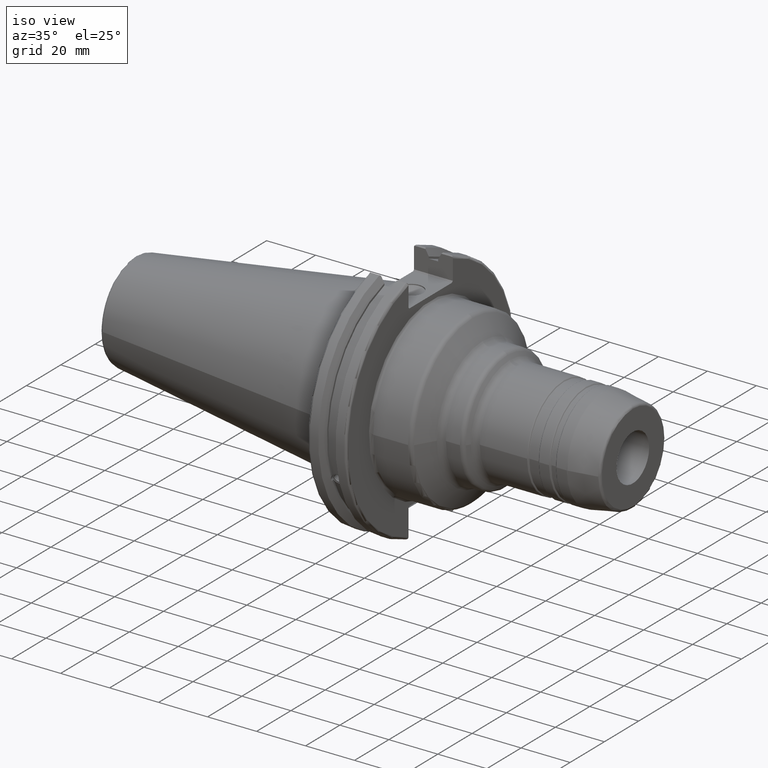
[diagram: clean part render]
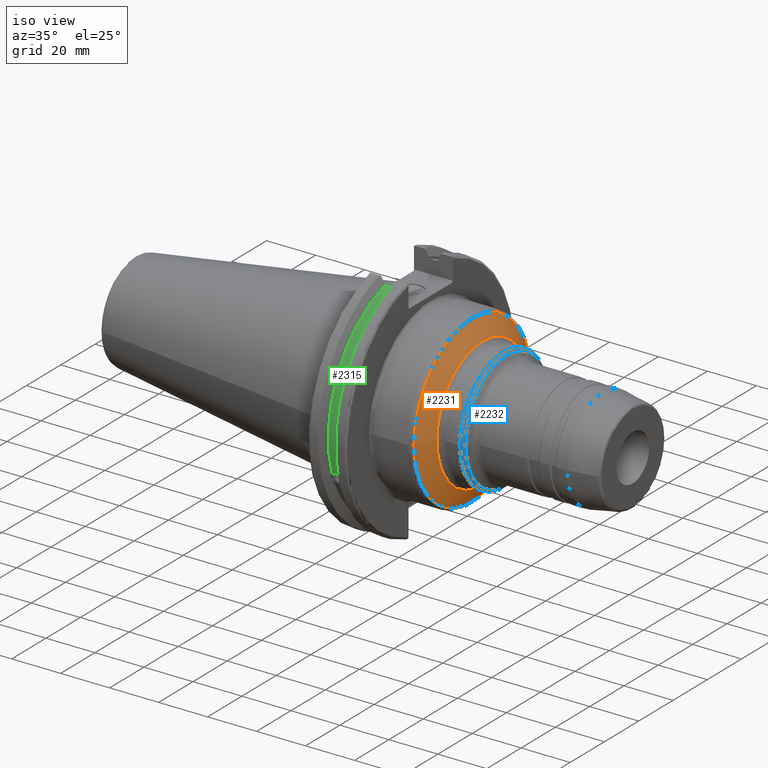
[diagram: same view with three faces highlighted in distinct colors, each labeled with its STEP entity id]
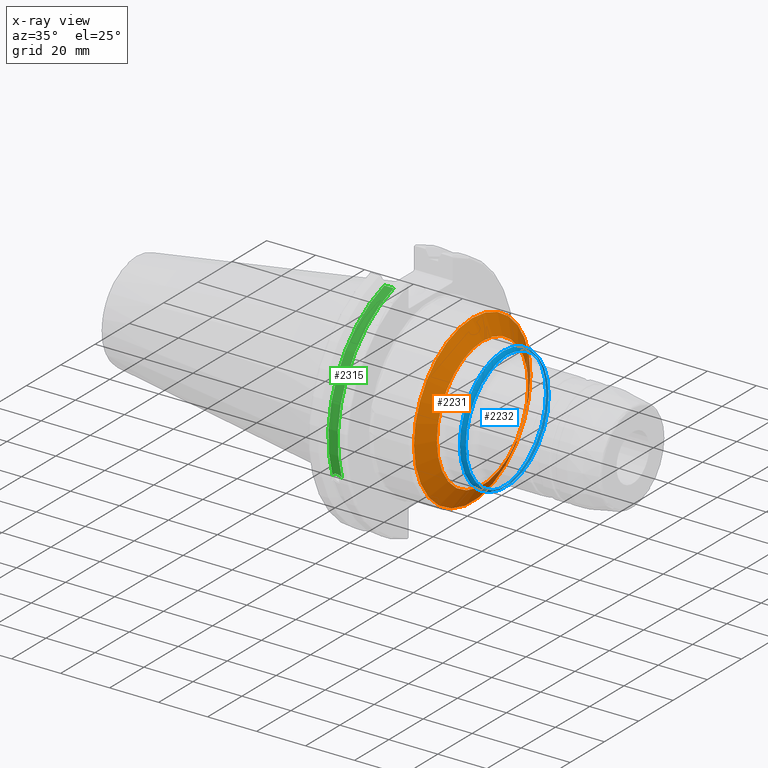
[diagram: x-ray of the same camera — body ghosted, the three highlighted faces saturated]
A machine part, iso view with three faces highlighted in distinct colors.
The next image is the same camera in x-ray (body ghosted, the three faces saturated) — at least one of them is partly hidden behind the body in this view.
Their STEP definitions:

[orange] entity #2231 — the highlighted conical surface has half-angle 60 deg.
#157=CONICAL_SURFACE('',#2452,30.0375,1.0471975511966);
#196=FACE_OUTER_BOUND('',#310,.T.);
#310=EDGE_LOOP('',(#1646,#1647,#1648,#1649,#1650,#1651,#1652,#1653));
#429=LINE('',#3668,#536);
#536=VECTOR('',#2898,30.0375);
#706=CIRCLE('',#2441,26.625);
#711=CIRCLE('',#2446,26.625);
#712=CIRCLE('',#2447,26.625);
#716=CIRCLE('',#2453,33.95);
#717=CIRCLE('',#2454,33.95);
#718=CIRCLE('',#2455,33.95);
#898=VERTEX_POINT('',#3645);
#899=VERTEX_POINT('',#3646);
#903=VERTEX_POINT('',#3655);
#907=VERTEX_POINT('',#3667);
#908=VERTEX_POINT('',#3669);
#909=VERTEX_POINT('',#3671);
#1183=EDGE_CURVE('',#898,#899,#706,.T.);
#1188=EDGE_CURVE('',#899,#903,#711,.T.);
#1189=EDGE_CURVE('',#903,#898,#712,.T.);
#1194=EDGE_CURVE('',#903,#907,#429,.T.);
#1195=EDGE_CURVE('',#908,#907,#716,.T.);
#1196=EDGE_CURVE('',#909,#908,#717,.T.);
#1197=EDGE_CURVE('',#907,#909,#718,.T.);
#1646=ORIENTED_EDGE('',*,*,#1183,.F.);
#1647=ORIENTED_EDGE('',*,*,#1189,.F.);
#1648=ORIENTED_EDGE('',*,*,#1194,.T.);
#1649=ORIENTED_EDGE('',*,*,#1195,.F.);
#1650=ORIENTED_EDGE('',*,*,#1196,.F.);
#1651=ORIENTED_EDGE('',*,*,#1197,.F.);
#1652=ORIENTED_EDGE('',*,*,#1194,.F.);
#1653=ORIENTED_EDGE('',*,*,#1188,.F.);
#2231=ADVANCED_FACE('',(#196),#157,.T.);
#2441=AXIS2_PLACEMENT_3D('',#3647,#2873,#2874);
#2446=AXIS2_PLACEMENT_3D('',#3656,#2883,#2884);
#2447=AXIS2_PLACEMENT_3D('',#3657,#2885,#2886);
#2452=AXIS2_PLACEMENT_3D('',#3666,#2896,#2897);
#2453=AXIS2_PLACEMENT_3D('',#3670,#2899,#2900);
#2454=AXIS2_PLACEMENT_3D('',#3672,#2901,#2902);
#2455=AXIS2_PLACEMENT_3D('',#3673,#2903,#2904);
#2873=DIRECTION('center_axis',(1.,0.,0.));
#2874=DIRECTION('ref_axis',(0.,-1.,3.06161699786838E-17));
#2883=DIRECTION('center_axis',(1.,0.,0.));
#2884=DIRECTION('ref_axis',(0.,-1.,3.06161699786838E-17));
#2885=DIRECTION('center_axis',(1.,0.,0.));
#2886=DIRECTION('ref_axis',(0.,-1.,3.06161699786838E-17));
#2896=DIRECTION('center_axis',(-1.,0.,0.));
#2897=DIRECTION('ref_axis',(0.,1.,0.));
#2898=DIRECTION('',(-0.5,-0.866025403784438,-1.06057523872491E-16));
#2899=DIRECTION('center_axis',(-1.,0.,0.));
#2900=DIRECTION('ref_axis',(0.,-1.,3.06161699786838E-17));
#2901=DIRECTION('center_axis',(-1.,0.,0.));
#2902=DIRECTION('ref_axis',(0.,-1.,3.06161699786838E-17));
#2903=DIRECTION('center_axis',(-1.,0.,0.));
#2904=DIRECTION('ref_axis',(0.,-1.,3.06161699786838E-17));
#3645=CARTESIAN_POINT('',(40.2339745962156,26.625,-1.63031105136491E-15));
#3646=CARTESIAN_POINT('',(40.2339745962156,-3.26062210272983E-15,26.625));
#3647=CARTESIAN_POINT('Origin',(40.2339745962156,0.,-4.07577762841228E-15));
#3655=CARTESIAN_POINT('',(40.2339745962156,-26.625,-3.26062210272982E-15));
#3656=CARTESIAN_POINT('Origin',(40.2339745962156,0.,-4.07577762841228E-15));
#3657=CARTESIAN_POINT('Origin',(40.2339745962156,0.,-4.07577762841228E-15));
#3666=CARTESIAN_POINT('Origin',(38.263766802606,0.,0.));
#3667=CARTESIAN_POINT('',(36.0048838744015,-33.95,-4.15767588310526E-15));
#3668=CARTESIAN_POINT('',(38.263766802606,-30.0375,-3.67853282293886E-15));
#3669=CARTESIAN_POINT('',(36.0048838744015,33.95,-1.03941897077632E-14));
#3670=CARTESIAN_POINT('Origin',(36.0048838744015,0.,-5.19709485388158E-15));
#3671=CARTESIAN_POINT('',(36.0048838744015,-4.15767588310526E-15,33.95));
#3672=CARTESIAN_POINT('Origin',(36.0048838744015,0.,-5.19709485388158E-15));
#3673=CARTESIAN_POINT('Origin',(36.0048838744015,0.,-5.19709485388158E-15));

[blue] entity #2232 — the highlighted toroidal blend (fillet) surface has major radius 23.125 mm and minor (blend) radius 2 mm.
#80=TOROIDAL_SURFACE('',#2456,23.125,2.);
#197=FACE_OUTER_BOUND('',#311,.T.);
#311=EDGE_LOOP('',(#1654,#1655,#1656,#1657,#1658,#1659,#1660,#1661));
#703=CIRCLE('',#2437,24.125);
#704=CIRCLE('',#2438,24.125);
#705=CIRCLE('',#2439,24.125);
#713=CIRCLE('',#2449,25.125);
#714=CIRCLE('',#2450,25.125);
#715=CIRCLE('',#2451,25.125);
#719=CIRCLE('',#2457,2.);
#895=VERTEX_POINT('',#3637);
#896=VERTEX_POINT('',#3639);
#897=VERTEX_POINT('',#3641);
#904=VERTEX_POINT('',#3659);
#905=VERTEX_POINT('',#3660);
#906=VERTEX_POINT('',#3662);
#1180=EDGE_CURVE('',#896,#895,#703,.T.);
#1181=EDGE_CURVE('',#897,#896,#704,.T.);
#1182=EDGE_CURVE('',#895,#897,#705,.T.);
#1190=EDGE_CURVE('',#904,#905,#713,.T.);
#1191=EDGE_CURVE('',#906,#904,#714,.T.);
#1193=EDGE_CURVE('',#905,#906,#715,.T.);
#1198=EDGE_CURVE('',#897,#905,#719,.T.);
#1654=ORIENTED_EDGE('',*,*,#1180,.T.);
#1655=ORIENTED_EDGE('',*,*,#1182,.T.);
#1656=ORIENTED_EDGE('',*,*,#1198,.T.);
#1657=ORIENTED_EDGE('',*,*,#1193,.T.);
#1658=ORIENTED_EDGE('',*,*,#1191,.T.);
#1659=ORIENTED_EDGE('',*,*,#1190,.T.);
#1660=ORIENTED_EDGE('',*,*,#1198,.F.);
#1661=ORIENTED_EDGE('',*,*,#1181,.T.);
#2232=ADVANCED_FACE('',(#197),#80,.T.);
#2437=AXIS2_PLACEMENT_3D('',#3640,#2865,#2866);
#2438=AXIS2_PLACEMENT_3D('',#3642,#2867,#2868);
#2439=AXIS2_PLACEMENT_3D('',#3643,#2869,#2870);
#2449=AXIS2_PLACEMENT_3D('',#3661,#2889,#2890);
#2450=AXIS2_PLACEMENT_3D('',#3663,#2891,#2892);
#2451=AXIS2_PLACEMENT_3D('',#3665,#2894,#2895);
#2456=AXIS2_PLACEMENT_3D('',#3674,#2905,#2906);
#2457=AXIS2_PLACEMENT_3D('',#3675,#2907,#2908);
#2865=DIRECTION('center_axis',(-1.,0.,0.));
#2866=DIRECTION('ref_axis',(0.,-1.,3.06161699786838E-17));
#2867=DIRECTION('center_axis',(-1.,0.,0.));
#2868=DIRECTION('ref_axis',(0.,-1.,3.06161699786838E-17));
#2869=DIRECTION('center_axis',(-1.,0.,0.));
#2870=DIRECTION('ref_axis',(0.,-1.,3.06161699786838E-17));
#2889=DIRECTION('center_axis',(1.,0.,0.));
#2890=DIRECTION('ref_axis',(0.,-1.,1.83697019872103E-16));
#2891=DIRECTION('center_axis',(1.,0.,0.));
#2892=DIRECTION('ref_axis',(0.,-1.,1.83697019872103E-16));
#2894=DIRECTION('center_axis',(1.,0.,0.));
#2895=DIRECTION('ref_axis',(0.,-1.,1.83697019872103E-16));
#2905=DIRECTION('center_axis',(1.,0.,0.));
#2906=DIRECTION('ref_axis',(0.,0.,-1.));
#2907=DIRECTION('center_axis',(0.,-1.,-1.22464679914735E-16));
#2908=DIRECTION('ref_axis',(0.,-1.22464679914735E-16,1.));
#3637=CARTESIAN_POINT('',(50.2957804087824,-24.125,-2.95446040294299E-15));
#3639=CARTESIAN_POINT('',(50.2957804087824,24.125,-7.38615100735747E-15));
#3640=CARTESIAN_POINT('Origin',(50.2957804087824,0.,-3.69307550367874E-15));
#3641=CARTESIAN_POINT('',(50.2957804087824,-2.95446040294299E-15,24.125));
#3642=CARTESIAN_POINT('Origin',(50.2957804087824,0.,-3.69307550367874E-15));
#3643=CARTESIAN_POINT('Origin',(50.2957804087824,0.,-3.69307550367874E-15));
#3659=CARTESIAN_POINT('',(48.5637296012135,25.125,-1.53846254142886E-15));
#3660=CARTESIAN_POINT('',(48.5637296012135,-3.07692508285772E-15,25.125));
#3661=CARTESIAN_POINT('Origin',(48.5637296012135,0.,0.));
#3662=CARTESIAN_POINT('',(48.5637296012135,-25.125,-3.07692508285772E-15));
#3663=CARTESIAN_POINT('Origin',(48.5637296012135,0.,0.));
#3665=CARTESIAN_POINT('Origin',(48.5637296012135,0.,0.));
#3674=CARTESIAN_POINT('Origin',(48.5637296012135,0.,0.));
#3675=CARTESIAN_POINT('Origin',(48.5637296012135,-2.83199572302825E-15,
23.125));

[green] entity #2315 — the highlighted cylindrical surface (partial cylindrical patch) has radius 45.6435 mm, axis along (1, 0, 0).
#121=B_SPLINE_CURVE_WITH_KNOTS('',3,(#3875,#3876,#3877,#3878,#3879,#3880,
#3881,#3882,#3883,#3884,#3885,#3886,#3887,#3888),.UNSPECIFIED.,.F.,.F.,
(4,2,2,2,2,2,4),(0.40154831257669,0.474697095495631,0.553813286063443,0.632929476631254,
0.712045667199066,0.791161857766877,0.864310640685818),.UNSPECIFIED.);
#280=FACE_OUTER_BOUND('',#411,.T.);
#411=EDGE_LOOP('',(#2163,#2164,#2165,#2166));
#491=LINE('',#4411,#598);
#598=VECTOR('',#3218,10.);
#822=CIRCLE('',#2644,45.6435);
#823=CIRCLE('',#2646,45.6435);
#945=VERTEX_POINT('',#3872);
#946=VERTEX_POINT('',#3874);
#1051=VERTEX_POINT('',#4408);
#1052=VERTEX_POINT('',#4410);
#1245=EDGE_CURVE('',#946,#945,#121,.T.);
#1379=EDGE_CURVE('',#1052,#1051,#491,.T.);
#1445=EDGE_CURVE('',#1051,#946,#822,.T.);
#1446=EDGE_CURVE('',#1052,#945,#823,.T.);
#2163=ORIENTED_EDGE('',*,*,#1245,.T.);
#2164=ORIENTED_EDGE('',*,*,#1446,.F.);
#2165=ORIENTED_EDGE('',*,*,#1379,.T.);
#2166=ORIENTED_EDGE('',*,*,#1445,.T.);
#2204=CYLINDRICAL_SURFACE('',#2645,45.6435);
#2315=ADVANCED_FACE('',(#280),#2204,.T.);
#2644=AXIS2_PLACEMENT_3D('',#4593,#3371,#3372);
#2645=AXIS2_PLACEMENT_3D('',#4594,#3373,#3374);
#2646=AXIS2_PLACEMENT_3D('',#4595,#3375,#3376);
#3218=DIRECTION('',(-1.,0.,0.));
#3371=DIRECTION('center_axis',(1.,0.,0.));
#3372=DIRECTION('ref_axis',(0.,0.,-1.));
#3373=DIRECTION('center_axis',(1.,0.,0.));
#3374=DIRECTION('ref_axis',(0.,-0.888619069115281,0.458645996390125));
#3375=DIRECTION('center_axis',(1.,0.,0.));
#3376=DIRECTION('ref_axis',(0.,0.,-1.));
#3872=CARTESIAN_POINT('',(13.0491,-43.1779814500336,-14.7983448449669));
#3874=CARTESIAN_POINT('',(9.2191,-43.1779814500336,-14.7983448449669));
#3875=CARTESIAN_POINT('Ctrl Pts',(9.2191,-43.1779814500335,-14.7983448449669));
#3876=CARTESIAN_POINT('Ctrl Pts',(9.32532177598176,-43.2545173750974,-14.5750315766731));
#3877=CARTESIAN_POINT('Ctrl Pts',(9.47680807557665,-43.3223492818373,-14.3712521044637));
#3878=CARTESIAN_POINT('Ctrl Pts',(9.83560503400179,-43.4340904392251,-14.0300988117073));
#3879=CARTESIAN_POINT('Ctrl Pts',(10.0717203280543,-43.4832903960863,-13.8760243976176));
#3880=CARTESIAN_POINT('Ctrl Pts',(10.5891059167872,-43.54802519266,-13.6715068146718));
#3881=CARTESIAN_POINT('Ctrl Pts',(10.870379364774,-43.5636826100883,-13.6211104428929));
#3882=CARTESIAN_POINT('Ctrl Pts',(11.397820635226,-43.5636826100883,-13.6211104428929));
#3883=CARTESIAN_POINT('Ctrl Pts',(11.6790940832128,-43.54802519266,-13.6715068146718));
#3884=CARTESIAN_POINT('Ctrl Pts',(12.1964796719457,-43.4832903960863,-13.8760243976176));
#3885=CARTESIAN_POINT('Ctrl Pts',(12.4325949659982,-43.4340904392251,-14.0300988117073));
#3886=CARTESIAN_POINT('Ctrl Pts',(12.7913919244233,-43.3223492818373,-14.3712521044637));
#3887=CARTESIAN_POINT('Ctrl Pts',(12.9428782240182,-43.2545173750974,-14.5750315766731));
#3888=CARTESIAN_POINT('Ctrl Pts',(13.0491,-43.1779814500335,-14.7983448449669));
#4408=CARTESIAN_POINT('',(9.2191,-12.95,43.7678716897452));
#4410=CARTESIAN_POINT('',(13.0491,-12.95,43.7678716897452));
#4411=CARTESIAN_POINT('',(11.1341,-12.95,43.7678716897452));
#4593=CARTESIAN_POINT('Origin',(9.2191,0.,0.));
#4594=CARTESIAN_POINT('Origin',(11.1341,0.,0.));
#4595=CARTESIAN_POINT('Origin',(13.0491,0.,0.));